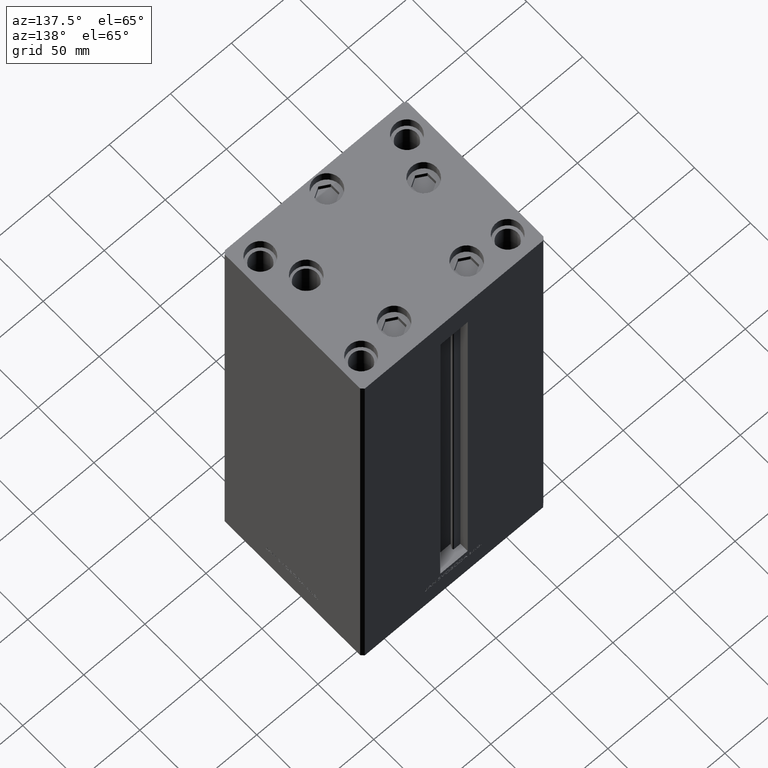
[diagram: clean part render]
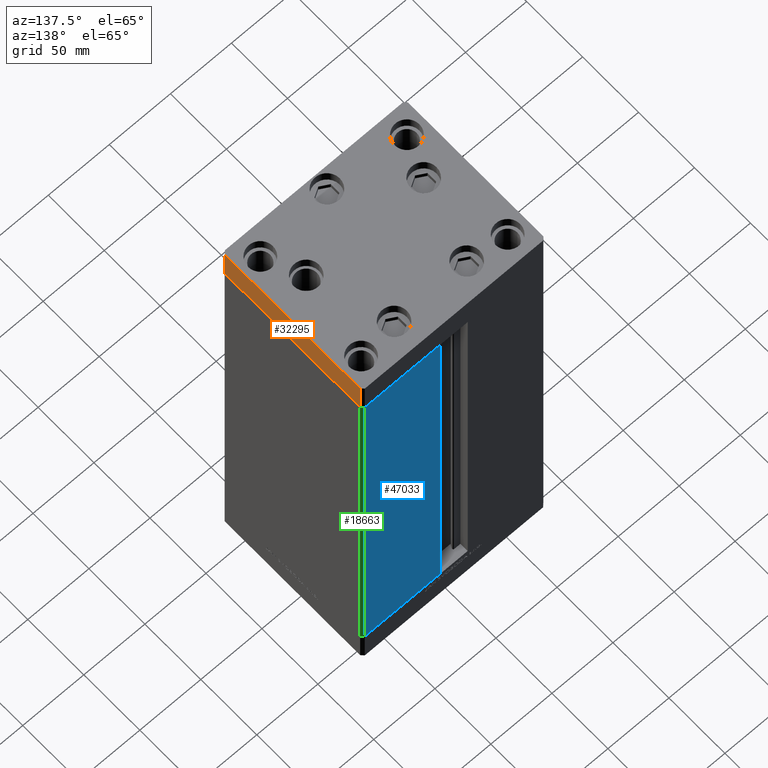
[diagram: same view with three faces highlighted in distinct colors, each labeled with its STEP entity id]
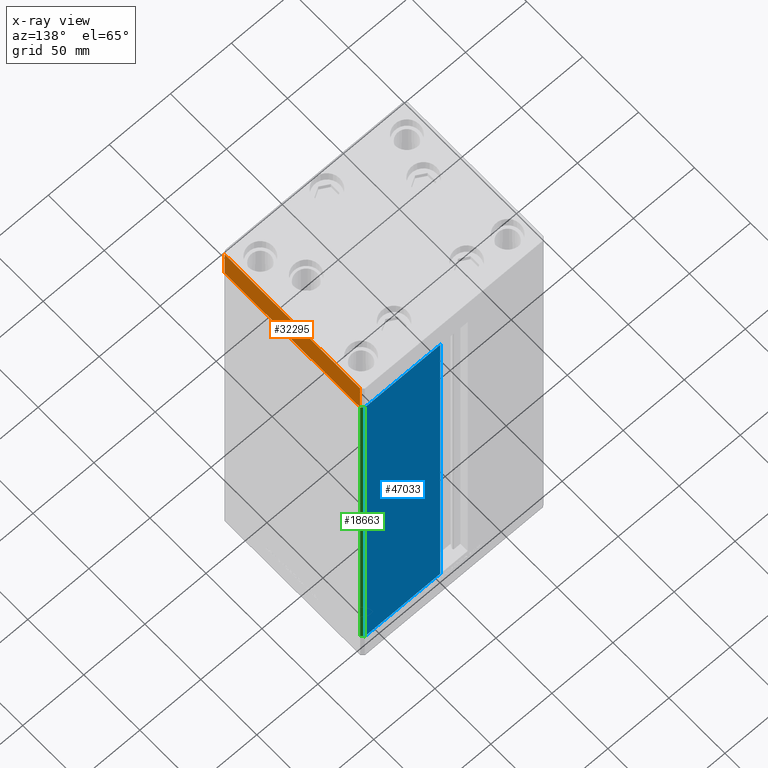
[diagram: x-ray of the same camera — body ghosted, the three highlighted faces saturated]
A machine part, auxiliary view with three faces highlighted in distinct colors.
The next image is the same camera in x-ray (body ghosted, the three faces saturated) — at least one of them is partly hidden behind the body in this view.
Their STEP definitions:

[orange] entity #32295 — the highlighted planar face has unit normal (1, 0, 0).
#33 = CARTESIAN_POINT ( 'NONE',  ( 74.99999999999992895, 60.50000000000002842, -27.00000000000000000 ) ) ;
#77 = LINE ( 'NONE', #46747, #37489 ) ;
#1242 = ORIENTED_EDGE ( 'NONE', *, *, #35449, .F. ) ;
#2259 = DIRECTION ( 'NONE',  ( -6.881547673296424104E-16, 1.000000000000000000, 0.000000000000000000 ) ) ;
#3073 = ORIENTED_EDGE ( 'NONE', *, *, #30130, .F. ) ;
#4365 = DIRECTION ( 'NONE',  ( 1.000000000000000000, 6.881547673296424104E-16, -0.000000000000000000 ) ) ;
#5201 = AXIS2_PLACEMENT_3D ( 'NONE', #35063, #4365, #34822 ) ;
#12088 = CARTESIAN_POINT ( 'NONE',  ( 74.99999999999992895, 60.50000000000002842, 0.000000000000000000 ) ) ;
#13212 = VERTEX_POINT ( 'NONE', #12088 ) ;
#14486 = VERTEX_POINT ( 'NONE', #39973 ) ;
#20190 = PLANE ( 'NONE',  #5201 ) ;
#20957 = VECTOR ( 'NONE', #2259, 1000.000000000000000 ) ;
#21289 = EDGE_LOOP ( 'NONE', ( #3073, #1242, #45200, #33435 ) ) ;
#22526 = LINE ( 'NONE', #27456, #39514 ) ;
#23169 = EDGE_CURVE ( 'NONE', #26960, #30993, #77, .T. ) ;
#23984 = DIRECTION ( 'NONE',  ( -6.881547673296424104E-16, 1.000000000000000000, 0.000000000000000000 ) ) ;
#26960 = VERTEX_POINT ( 'NONE', #48571 ) ;
#27456 = CARTESIAN_POINT ( 'NONE',  ( 74.99999999999992895, 60.50000000000002842, -27.00000000000000000 ) ) ;
#27699 = DIRECTION ( 'NONE',  ( 0.000000000000000000, 0.000000000000000000, 1.000000000000000000 ) ) ;
#30130 = EDGE_CURVE ( 'NONE', #14486, #13212, #36190, .T. ) ;
#30993 = VERTEX_POINT ( 'NONE', #33 ) ;
#32295 = ADVANCED_FACE ( 'NONE', ( #39009 ), #20190, .T. ) ;
#32726 = CARTESIAN_POINT ( 'NONE',  ( 75.00000000000001421, -60.50000000000000711, 0.000000000000000000 ) ) ;
#33435 = ORIENTED_EDGE ( 'NONE', *, *, #45213, .T. ) ;
#34822 = DIRECTION ( 'NONE',  ( -6.881547673296424104E-16, 1.000000000000000000, 0.000000000000000000 ) ) ;
#35063 = CARTESIAN_POINT ( 'NONE',  ( 75.00000000000001421, -60.50000000000000711, -27.00000000000000000 ) ) ;
#35449 = EDGE_CURVE ( 'NONE', #26960, #14486, #41089, .T. ) ;
#36190 = LINE ( 'NONE', #32726, #20957 ) ;
#37489 = VECTOR ( 'NONE', #23984, 1000.000000000000000 ) ;
#39009 = FACE_OUTER_BOUND ( 'NONE', #21289, .T. ) ;
#39514 = VECTOR ( 'NONE', #27699, 1000.000000000000000 ) ;
#39973 = CARTESIAN_POINT ( 'NONE',  ( 75.00000000000001421, -60.50000000000000711, 0.000000000000000000 ) ) ;
#40601 = CARTESIAN_POINT ( 'NONE',  ( 75.00000000000001421, -60.50000000000000711, -27.00000000000000000 ) ) ;
#41089 = LINE ( 'NONE', #40601, #43257 ) ;
#43257 = VECTOR ( 'NONE', #48264, 1000.000000000000000 ) ;
#45200 = ORIENTED_EDGE ( 'NONE', *, *, #23169, .T. ) ;
#45213 = EDGE_CURVE ( 'NONE', #30993, #13212, #22526, .T. ) ;
#46747 = CARTESIAN_POINT ( 'NONE',  ( 75.00000000000001421, -60.50000000000000711, -27.00000000000000000 ) ) ;
#48264 = DIRECTION ( 'NONE',  ( 0.000000000000000000, 0.000000000000000000, 1.000000000000000000 ) ) ;
#48571 = CARTESIAN_POINT ( 'NONE',  ( 75.00000000000001421, -60.50000000000000711, -27.00000000000000000 ) ) ;

[blue] entity #47033 — the highlighted planar face has unit normal (-0, -1, 0).
#1 = EDGE_CURVE ( 'NONE', #33402, #41512, #26942, .T. ) ;
#373 = VECTOR ( 'NONE', #35687, 1000.000000000000000 ) ;
#799 = CARTESIAN_POINT ( 'NONE',  ( -11.25000000000000178, 62.49999999999999289, 327.0000000000000000 ) ) ;
#4768 = AXIS2_PLACEMENT_3D ( 'NONE', #5000, #35459, #5494 ) ;
#5000 = CARTESIAN_POINT ( 'NONE',  ( -11.25000000000000178, 62.49999999999999289, 327.0000000000000000 ) ) ;
#5312 = ORIENTED_EDGE ( 'NONE', *, *, #12578, .T. ) ;
#5494 = DIRECTION ( 'NONE',  ( 1.000000000000000000, -1.123707514802790025E-16, 0.000000000000000000 ) ) ;
#5723 = LINE ( 'NONE', #8713, #373 ) ;
#6935 = EDGE_LOOP ( 'NONE', ( #48195, #14413, #5312, #18186 ) ) ;
#7485 = LINE ( 'NONE', #37433, #38021 ) ;
#8571 = CARTESIAN_POINT ( 'NONE',  ( 11.24999999999999467, 62.49999999999999289, 327.0000000000000000 ) ) ;
#8713 = CARTESIAN_POINT ( 'NONE',  ( 11.25000000000000178, 62.49999999999999289, 0.000000000000000000 ) ) ;
#12137 = VECTOR ( 'NONE', #42505, 1000.000000000000000 ) ;
#12578 = EDGE_CURVE ( 'NONE', #48503, #47172, #27298, .T. ) ;
#14413 = ORIENTED_EDGE ( 'NONE', *, *, #24294, .T. ) ;
#15027 = EDGE_CURVE ( 'NONE', #47172, #33402, #7485, .T. ) ;
#16638 = PLANE ( 'NONE',  #4768 ) ;
#18186 = ORIENTED_EDGE ( 'NONE', *, *, #15027, .T. ) ;
#18883 = DIRECTION ( 'NONE',  ( 1.000000000000000000, 0.000000000000000000, 0.000000000000000000 ) ) ;
#24294 = EDGE_CURVE ( 'NONE', #41512, #48503, #5723, .T. ) ;
#26942 = LINE ( 'NONE', #42026, #12137 ) ;
#27298 = LINE ( 'NONE', #799, #43476 ) ;
#31508 = FACE_OUTER_BOUND ( 'NONE', #6935, .T. ) ;
#33402 = VERTEX_POINT ( 'NONE', #35372 ) ;
#33723 = DIRECTION ( 'NONE',  ( -0.000000000000000000, -0.000000000000000000, -1.000000000000000000 ) ) ;
#35372 = CARTESIAN_POINT ( 'NONE',  ( 73.00000000000001421, 62.50000000000000000, 0.000000000000000000 ) ) ;
#35459 = DIRECTION ( 'NONE',  ( -1.123707514802790025E-16, -1.000000000000000000, 0.000000000000000000 ) ) ;
#35687 = DIRECTION ( 'NONE',  ( -0.000000000000000000, -0.000000000000000000, 1.000000000000000000 ) ) ;
#37433 = CARTESIAN_POINT ( 'NONE',  ( 73.00000000000001421, 62.50000000000000000, 327.0000000000000000 ) ) ;
#38021 = VECTOR ( 'NONE', #33723, 1000.000000000000000 ) ;
#41512 = VERTEX_POINT ( 'NONE', #45371 ) ;
#42026 = CARTESIAN_POINT ( 'NONE',  ( -11.25000000000000178, 62.49999999999999289, 0.000000000000000000 ) ) ;
#42505 = DIRECTION ( 'NONE',  ( -1.000000000000000000, 1.123707514802790025E-16, 0.000000000000000000 ) ) ;
#43476 = VECTOR ( 'NONE', #18883, 1000.000000000000000 ) ;
#43854 = CARTESIAN_POINT ( 'NONE',  ( 73.00000000000001421, 62.50000000000000000, 327.0000000000000000 ) ) ;
#45371 = CARTESIAN_POINT ( 'NONE',  ( 11.25000000000000178, 62.49999999999999289, 0.000000000000000000 ) ) ;
#47033 = ADVANCED_FACE ( 'NONE', ( #31508 ), #16638, .F. ) ;
#47172 = VERTEX_POINT ( 'NONE', #43854 ) ;
#48195 = ORIENTED_EDGE ( 'NONE', *, *, #1, .T. ) ;
#48503 = VERTEX_POINT ( 'NONE', #8571 ) ;

[green] entity #18663 — the highlighted planar face has unit normal (0.7071, 0.7071, 0).
#4247 = EDGE_LOOP ( 'NONE', ( #30306, #42359, #21200, #20064 ) ) ;
#7485 = LINE ( 'NONE', #37433, #38021 ) ;
#8090 = AXIS2_PLACEMENT_3D ( 'NONE', #44425, #29833, #40715 ) ;
#9714 = DIRECTION ( 'NONE',  ( 0.7071067811865474617, -0.7071067811865474617, 0.000000000000000000 ) ) ;
#11808 = VERTEX_POINT ( 'NONE', #32764 ) ;
#13010 = LINE ( 'NONE', #36762, #29444 ) ;
#13986 = FACE_OUTER_BOUND ( 'NONE', #4247, .T. ) ;
#15027 = EDGE_CURVE ( 'NONE', #47172, #33402, #7485, .T. ) ;
#18564 = EDGE_CURVE ( 'NONE', #30923, #11808, #13010, .T. ) ;
#18663 = ADVANCED_FACE ( 'NONE', ( #13986 ), #44176, .T. ) ;
#20064 = ORIENTED_EDGE ( 'NONE', *, *, #18564, .T. ) ;
#20655 = CARTESIAN_POINT ( 'NONE',  ( 75.00000000000001421, 60.50000000000000000, 327.0000000000000000 ) ) ;
#21200 = ORIENTED_EDGE ( 'NONE', *, *, #42463, .T. ) ;
#23819 = LINE ( 'NONE', #36193, #30745 ) ;
#24741 = LINE ( 'NONE', #44281, #48876 ) ;
#29444 = VECTOR ( 'NONE', #47149, 1000.000000000000000 ) ;
#29833 = DIRECTION ( 'NONE',  ( 0.7071067811865475727, 0.7071067811865475727, -0.000000000000000000 ) ) ;
#30306 = ORIENTED_EDGE ( 'NONE', *, *, #41929, .F. ) ;
#30745 = VECTOR ( 'NONE', #9714, 1000.000000000000114 ) ;
#30923 = VERTEX_POINT ( 'NONE', #20655 ) ;
#32764 = CARTESIAN_POINT ( 'NONE',  ( 75.00000000000001421, 60.50000000000000000, 0.000000000000000000 ) ) ;
#33402 = VERTEX_POINT ( 'NONE', #35372 ) ;
#33723 = DIRECTION ( 'NONE',  ( -0.000000000000000000, -0.000000000000000000, -1.000000000000000000 ) ) ;
#35372 = CARTESIAN_POINT ( 'NONE',  ( 73.00000000000001421, 62.50000000000000000, 0.000000000000000000 ) ) ;
#36193 = CARTESIAN_POINT ( 'NONE',  ( 73.00000000000001421, 62.50000000000000000, 327.0000000000000000 ) ) ;
#36762 = CARTESIAN_POINT ( 'NONE',  ( 75.00000000000001421, 60.50000000000000000, 327.0000000000000000 ) ) ;
#37433 = CARTESIAN_POINT ( 'NONE',  ( 73.00000000000001421, 62.50000000000000000, 327.0000000000000000 ) ) ;
#38021 = VECTOR ( 'NONE', #33723, 1000.000000000000000 ) ;
#39834 = DIRECTION ( 'NONE',  ( 0.7071067811865474617, -0.7071067811865474617, 0.000000000000000000 ) ) ;
#40715 = DIRECTION ( 'NONE',  ( -0.7071067811865474617, 0.7071067811865474617, 0.000000000000000000 ) ) ;
#41929 = EDGE_CURVE ( 'NONE', #33402, #11808, #24741, .T. ) ;
#42359 = ORIENTED_EDGE ( 'NONE', *, *, #15027, .F. ) ;
#42463 = EDGE_CURVE ( 'NONE', #47172, #30923, #23819, .T. ) ;
#43854 = CARTESIAN_POINT ( 'NONE',  ( 73.00000000000001421, 62.50000000000000000, 327.0000000000000000 ) ) ;
#44176 = PLANE ( 'NONE',  #8090 ) ;
#44281 = CARTESIAN_POINT ( 'NONE',  ( 73.00000000000001421, 62.50000000000000000, 0.000000000000000000 ) ) ;
#44425 = CARTESIAN_POINT ( 'NONE',  ( 73.00000000000001421, 62.50000000000000000, 327.0000000000000000 ) ) ;
#47149 = DIRECTION ( 'NONE',  ( -0.000000000000000000, -0.000000000000000000, -1.000000000000000000 ) ) ;
#47172 = VERTEX_POINT ( 'NONE', #43854 ) ;
#48876 = VECTOR ( 'NONE', #39834, 1000.000000000000114 ) ;